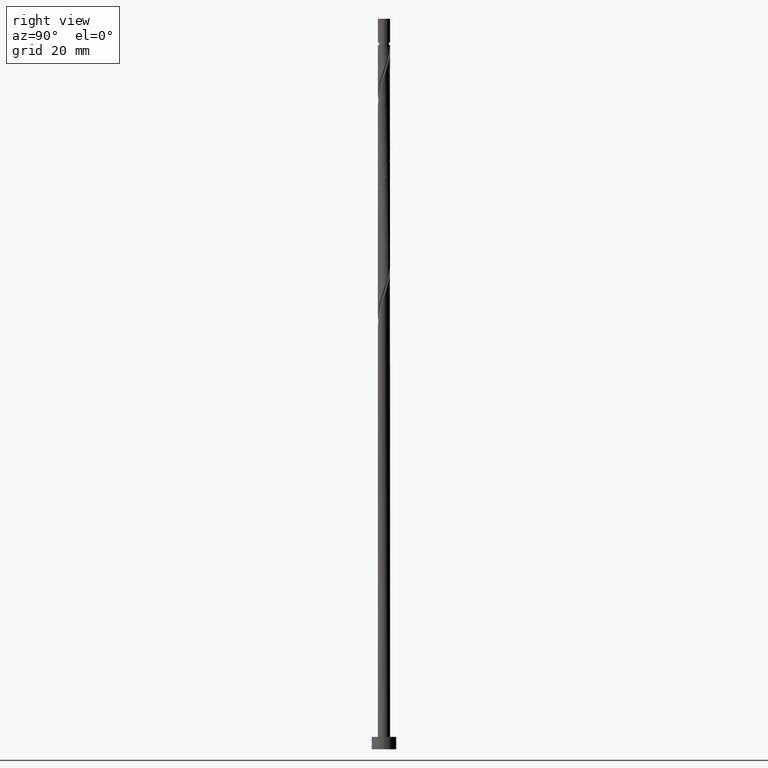
[diagram: clean part render]
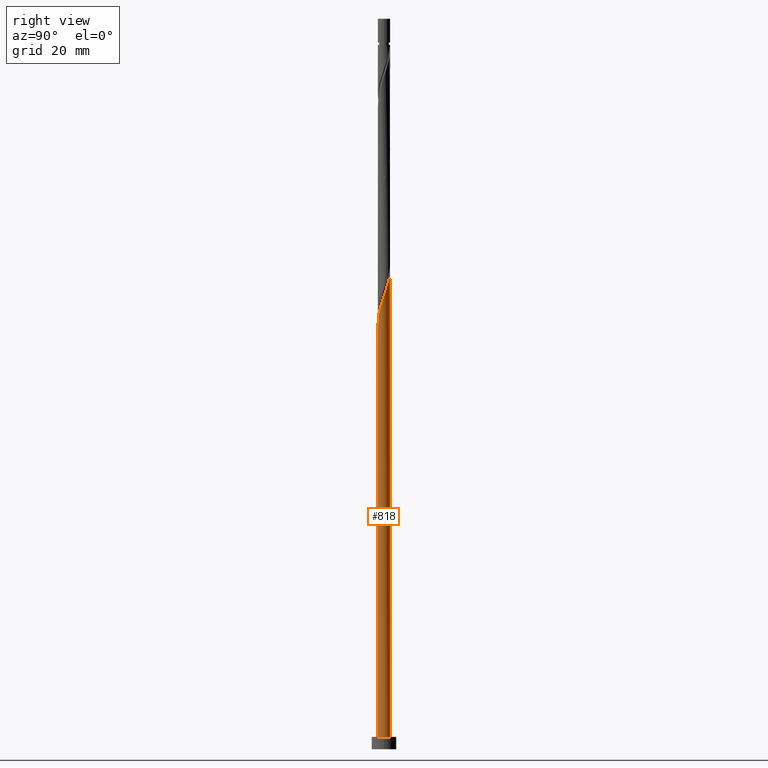
[diagram: same view with one face highlighted and labeled with its STEP entity id]
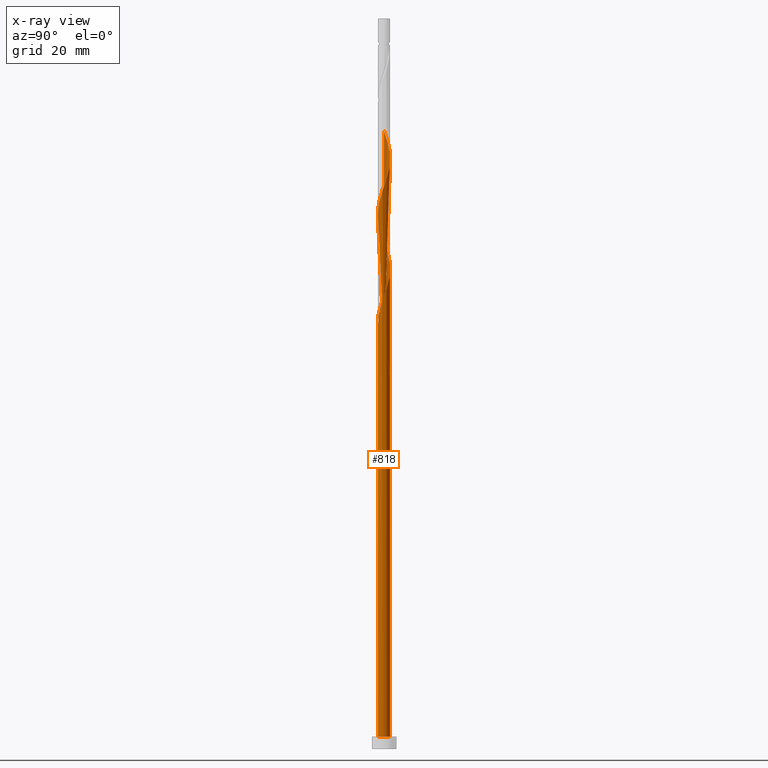
[diagram: x-ray of the same camera — body ghosted, the highlighted face saturated]
A machine part, right view. The second image highlights one B-rep face of the part: STEP entity #818.
The next image is the same camera in x-ray: the body ghosted, the highlighted face saturated — about 0% of this face is hidden behind the body in this view.
In plain terms, the highlighted cylindrical surface (bore or boss wall) has radius 1.5 mm, axis along (-0, -0, -1).
Its self-contained STEP definition (entity closure, byte-faithful):
#6 = CARTESIAN_POINT ( 'NONE',  ( -1.412398115979206503, 0.5492212733340110509, 121.5308264145813837 ) ) ;
#11 = CARTESIAN_POINT ( 'NONE',  ( -1.500000000000003109, -1.914473050047502807E-15, 96.43894769285623170 ) ) ;
#14 = CARTESIAN_POINT ( 'NONE',  ( -1.461158848907852859, 0.3391383467823808617, 122.1368870206419786 ) ) ;
#21 = CARTESIAN_POINT ( 'NONE',  ( -1.412557076706239645, -0.5046607821568174224, 124.5611294448844149 ) ) ;
#26 = CARTESIAN_POINT ( 'NONE',  ( -1.086320624467307816, -1.056607754070167271, 99.71264459639954225 ) ) ;
#29 = CARTESIAN_POINT ( 'NONE',  ( 1.509919581836499436, -0.1290554202307508114, 136.0762809600359446 ) ) ;
#68 = CARTESIAN_POINT ( 'NONE',  ( 0.7446362021362258332, 1.319859602977673685, 140.9247658085207604 ) ) ;
#89 = CARTESIAN_POINT ( 'NONE',  ( 0.5436309926831522921, 1.398021939668451230, 141.5308264145813268 ) ) ;
#98 =( BOUNDED_CURVE ( )  B_SPLINE_CURVE ( 2, ( #1174, #325, #1534, #331, #707, #450, #568, #926, #1401, #105, #935 ),
 .UNSPECIFIED., .F., .T. ) 
 B_SPLINE_CURVE_WITH_KNOTS ( ( 3, 2, 2, 2, 2, 3 ),
 ( 0.000000000000000000, 0.01136363636363635181, 0.02272727272727270362, 0.03409090909090906063, 0.04545454545454540723, 0.05452521624175146742 ),
 .UNSPECIFIED. ) 
 CURVE ( )  GEOMETRIC_REPRESENTATION_ITEM ( )  RATIONAL_B_SPLINE_CURVE ( ( 0.9090909090909382595, 0.8998376744372403868, 0.9090909090909382595, 0.8998376744372403868, 0.9090909090909382595, 0.8998376744372403868, 0.9090909090909382595, 0.8998376744372403868, 0.9090909090909382595, 0.9017048011080177616, 0.9061101570135787764 ) ) 
 REPRESENTATION_ITEM ( '' )  );
#105 = CARTESIAN_POINT ( 'NONE',  ( -1.500000000000003997, 0.1717933910776807405, 95.95298773988494645 ) ) ;
#110 = CARTESIAN_POINT ( 'NONE',  ( 0.7005518949784530491, -1.326358564808969298, 131.8338567176116953 ) ) ;
#117 = CARTESIAN_POINT ( 'NONE',  ( -0.3426257832300790840, -1.476184276359228109, 102.1368870206419501 ) ) ;
#121 = CIRCLE ( 'NONE', #1119, 1.500000000000000222 ) ;
#123 = DIRECTION ( 'NONE',  ( -0.000000000000000000, -0.000000000000000000, -1.000000000000000000 ) ) ;
#125 = ORIENTED_EDGE ( 'NONE', *, *, #849, .F. ) ;
#126 = CARTESIAN_POINT ( 'NONE',  ( -0.5436309926831528472, -1.398021939668451230, 101.5308264145813837 ) ) ;
#137 = AXIS2_PLACEMENT_3D ( 'NONE', #1131, #866, #1339 ) ;
#138 = CARTESIAN_POINT ( 'NONE',  ( 1.306425335299756130, -0.7370568792752210108, 107.5914324751874460 ) ) ;
#142 = CARTESIAN_POINT ( 'NONE',  ( -1.497517962423707383, -0.08625515763335846187, 96.68234156609651109 ) ) ;
#145 = CARTESIAN_POINT ( 'NONE',  ( 1.412398115979206725, -0.5492212733340107178, 134.8641597479146981 ) ) ;
#169 = CARTESIAN_POINT ( 'NONE',  ( 0.000000000000000000, 0.000000000000000000, 3.000000000000000000 ) ) ;
#192 = CARTESIAN_POINT ( 'NONE',  ( 0.9154784133017664915, 1.188233678523920478, 140.3187052024601655 ) ) ;
#216 = CARTESIAN_POINT ( 'NONE',  ( -1.086320624467305818, 1.056607754070165939, 94.86415974791471228 ) ) ;
#224 = CARTESIAN_POINT ( 'NONE',  ( 0.08714213895937637788, 1.512917278876086069, 91.22779611155107204 ) ) ;
#237 = CARTESIAN_POINT ( 'NONE',  ( -1.509919581836499436, 0.1290554202307509502, 122.7429476267025592 ) ) ;
#244 = CARTESIAN_POINT ( 'NONE',  ( 1.497517962423707605, 0.08625515763335830921, 110.0156748994298539 ) ) ;
#252 = CARTESIAN_POINT ( 'NONE',  ( 0.08714213895937622523, -1.512917278876088734, 130.0156748994297971 ) ) ;
#258 = ORIENTED_EDGE ( 'NONE', *, *, #1186, .F. ) ;
#260 = CARTESIAN_POINT ( 'NONE',  ( -0.2984962311319871997, 1.470000000000002416, 117.2884021721571486 ) ) ;
#267 = CARTESIAN_POINT ( 'NONE',  ( -0.7005518949784533822, 1.326358564808968410, 118.5005233842783383 ) ) ;
#306 = VERTEX_POINT ( 'NONE', #645 ) ;
#325 = CARTESIAN_POINT ( 'NONE',  ( -0.5098503233045985628, 1.427082721123916098, 91.22779611155105783 ) ) ;
#331 = CARTESIAN_POINT ( 'NONE',  ( -0.8912534666523078686, 1.225634408494020722, 92.43991732367224756 ) ) ;
#334 = CARTESIAN_POINT ( 'NONE',  ( -0.2984962311319870332, 1.470000000000002416, 90.62173550549044876 ) ) ;
#347 = CARTESIAN_POINT ( 'NONE',  ( -0.9154784133017667136, -1.188233678523920256, 126.9853718691268369 ) ) ;
#352 = CYLINDRICAL_SURFACE ( 'NONE', #1142, 1.500000000000000222 ) ;
#353 = EDGE_CURVE ( 'NONE', #649, #1531, #1482, .T. ) ;
#357 = CARTESIAN_POINT ( 'NONE',  ( -1.200452554620305978, 0.9248924852164307486, 120.3187052024601655 ) ) ;
#364 = CARTESIAN_POINT ( 'NONE',  ( -0.7446362021362261663, -1.319859602977673463, 127.5914324751874176 ) ) ;
#374 = CARTESIAN_POINT ( 'NONE',  ( 1.306425335299756130, -0.7370568792752210108, 134.2580991418541316 ) ) ;
#383 = CARTESIAN_POINT ( 'NONE',  ( 1.339997810401564404, 0.7077558288161668321, 138.5005233842783241 ) ) ;
#423 = CARTESIAN_POINT ( 'NONE',  ( -1.500000000000002442, 0.1717933910776870132, 149.2863210732182608 ) ) ;
#424 = EDGE_CURVE ( 'NONE', #1040, #838, #776, .T. ) ;
#436 = CARTESIAN_POINT ( 'NONE',  ( -1.412398115979206503, 0.5492212733340110509, 148.1974930812480125 ) ) ;
#450 = CARTESIAN_POINT ( 'NONE',  ( -1.200452554620305978, 0.9248924852164307486, 93.65203853579347992 ) ) ;
#462 = CARTESIAN_POINT ( 'NONE',  ( 1.485116343010915552, 0.3015657354974674020, 110.6217355054904488 ) ) ;
#472 = CARTESIAN_POINT ( 'NONE',  ( -0.7446362021362261663, -1.319859602977673463, 100.9247658085207462 ) ) ;
#473 = CARTESIAN_POINT ( 'NONE',  ( -0.7446362021362245009, 1.319859602977671686, 93.65203853579349413 ) ) ;
#482 = CARTESIAN_POINT ( 'NONE',  ( -1.497517962423707383, -0.08625515763335846187, 123.3490082327632109 ) ) ;
#491 = CARTESIAN_POINT ( 'NONE',  ( 0.5098503233045983407, -1.427082721123916320, 131.2277961115510436 ) ) ;
#496 = CARTESIAN_POINT ( 'NONE',  ( -1.485116343010915552, -0.3015657354974674575, 97.28840217215713437 ) ) ;
#499 = CARTESIAN_POINT ( 'NONE',  ( 1.497517962423707605, 0.08625515763335830921, 136.6823415660965111 ) ) ;
#516 = CIRCLE ( 'NONE', #1268, 1.500000000000000222 ) ;
#531 = CARTESIAN_POINT ( 'NONE',  ( 0.3426257832300792505, 1.476184276359228109, 142.1368870206419501 ) ) ;
#532 =( BOUNDED_CURVE ( )  B_SPLINE_CURVE ( 2, ( #11, #962, #142, #496, #611, #1210, #1095, #26, #830, #472, #126, #117, #867, #1340, #1306, #1066, #737, #957, #597, #1313, #138, #860, #606, #1099, #244, #462, #1083, #1430, #1335, #590, #706, #1541, #949, #716, #1187, #1091, #260, #1195, #267, #850, #1075, #357, #839, #6, #14, #237, #482, #966, #21, #1424, #1214, #1439, #347, #364, #1324, #1451, #1179, #252, #726, #491, #110, #1206, #582, #974, #374, #145, #614, #29, #499, #980, #1458, #383, #1025, #910, #192, #68, #89, #531, #675, #767, #1012, #918, #1372, #898, #540, #1363, #1507, #436, #1136, #423, #1262 ),
 .UNSPECIFIED., .F., .T. ) 
 B_SPLINE_CURVE_WITH_KNOTS ( ( 3, 2, 2, 2, 2, 2, 2, 2, 2, 2, 2, 2, 2, 2, 2, 2, 2, 2, 2, 2, 2, 2, 2, 2, 2, 2, 2, 2, 2, 2, 2, 2, 2, 2, 2, 2, 2, 2, 2, 2, 2, 2, 2, 2, 2, 3 ),
 ( 0.05452521624175146742, 0.05681818181818176772, 0.06818181818181823228, 0.07954545454545458583, 0.09090909090909093937, 0.1022727272727272929, 0.1136363636363636465, 0.1250000000000000000, 0.1363636363636363535, 0.1477272727272727071, 0.1590909090909090606, 0.1704545454545454142, 0.1818181818181817677, 0.1931818181818182323, 0.2045454545454545858, 0.2159090909090909394, 0.2272727272727272929, 0.2386363636363636465, 0.2500000000000000000, 0.2613636363636363535, 0.2727272727272727071, 0.2840909090909090606, 0.2954545454545454142, 0.3068181818181817677, 0.3181818181818182323, 0.3295454545454545858, 0.3409090909090909394, 0.3522727272727272929, 0.3636363636363636465, 0.3750000000000000000, 0.3863636363636363535, 0.3977272727272727071, 0.4090909090909090606, 0.4204545454545454142, 0.4318181818181817677, 0.4431818181818182323, 0.4545454545454545858, 0.4659090909090909394, 0.4772727272727272929, 0.4886363636363636465, 0.5000000000000000000, 0.5113636363636363535, 0.5227272727272727071, 0.5340909090909091717, 0.5454545454545454142, 0.5545252162417512176 ),
 .UNSPECIFIED. ) 
 CURVE ( )  GEOMETRIC_REPRESENTATION_ITEM ( )  RATIONAL_B_SPLINE_CURVE ( ( 0.9061101570135787764, 0.9072237824201608847, 0.9090909090909382595, 0.8998376744372403868, 0.9090909090909382595, 0.8998376744372403868, 0.9090909090909382595, 0.8998376744372403868, 0.9090909090909382595, 0.8998376744372403868, 0.9090909090909382595, 0.8998376744372403868, 0.9090909090909382595, 0.8998376744372403868, 0.9090909090909382595, 0.8998376744372403868, 0.9090909090909382595, 0.8998376744372403868, 0.9090909090909382595, 0.8998376744372403868, 0.9090909090909382595, 0.8998376744372403868, 0.9090909090909382595, 0.8998376744372403868, 0.9090909090909382595, 0.8998376744372403868, 0.9090909090909382595, 0.8998376744372403868, 0.9090909090909382595, 0.8998376744372403868, 0.9090909090909382595, 0.8998376744372403868, 0.9090909090909382595, 0.8998376744372403868, 0.9090909090909382595, 0.8998376744372403868, 0.9090909090909382595, 0.8998376744372403868, 0.9090909090909382595, 0.8998376744372403868, 0.9090909090909382595, 0.8998376744372403868, 0.9090909090909382595, 0.8998376744372403868, 0.9090909090909382595, 0.8998376744372403868, 0.9090909090909382595, 0.8998376744372403868, 0.9090909090909382595, 0.8998376744372403868, 0.9090909090909382595, 0.8998376744372403868, 0.9090909090909382595, 0.8998376744372403868, 0.9090909090909382595, 0.8998376744372403868, 0.9090909090909382595, 0.8998376744372403868, 0.9090909090909382595, 0.8998376744372403868, 0.9090909090909382595, 0.8998376744372403868, 0.9090909090909382595, 0.8998376744372403868, 0.9090909090909382595, 0.8998376744372403868, 0.9090909090909382595, 0.8998376744372403868, 0.9090909090909382595, 0.8998376744372403868, 0.9090909090909382595, 0.8998376744372403868, 0.9090909090909382595, 0.8998376744372403868, 0.9090909090909382595, 0.8998376744372403868, 0.9090909090909382595, 0.8998376744372403868, 0.9090909090909382595, 0.8998376744372403868, 0.9090909090909382595, 0.8998376744372403868, 0.9090909090909382595, 0.8998376744372403868, 0.9090909090909382595, 0.8998376744372403868, 0.9090909090909382595, 0.8998376744372403868, 0.9090909090909382595, 0.9017048011080179837, 0.9061101570135784433 ) ) 
 REPRESENTATION_ITEM ( '' )  );
#540 = CARTESIAN_POINT ( 'NONE',  ( -1.045853010636307090, 1.075263446855226013, 146.3793112630662563 ) ) ;
#568 = CARTESIAN_POINT ( 'NONE',  ( -1.306425335299756130, 0.7370568792752207887, 94.25809914185408900 ) ) ;
#582 = CARTESIAN_POINT ( 'NONE',  ( 1.045853010636307090, -1.075263446855226013, 133.0459779297328851 ) ) ;
#590 = CARTESIAN_POINT ( 'NONE',  ( 1.086320624467308260, 1.056607754070166605, 113.0459779297328851 ) ) ;
#597 = CARTESIAN_POINT ( 'NONE',  ( 1.045853010636307090, -1.075263446855226013, 106.3793112630662137 ) ) ;
#606 = CARTESIAN_POINT ( 'NONE',  ( 1.461158848907853081, -0.3391383467823806952, 108.8035536873086642 ) ) ;
#611 = CARTESIAN_POINT ( 'NONE',  ( -1.412557076706239645, -0.5046607821568174224, 97.89446277821774345 ) ) ;
#614 = CARTESIAN_POINT ( 'NONE',  ( 1.461158848907853081, -0.3391383467823806952, 135.4702203539753214 ) ) ;
#640 = LINE ( 'NONE', #764, #1219 ) ;
#645 = CARTESIAN_POINT ( 'NONE',  ( -1.500000000000002442, 1.720034380902052995E-16, 149.7722810261895461 ) ) ;
#649 = VERTEX_POINT ( 'NONE', #334 ) ;
#666 = ORIENTED_EDGE ( 'NONE', *, *, #1468, .T. ) ;
#675 = CARTESIAN_POINT ( 'NONE',  ( 0.1277418221353515959, 1.494550777617658976, 142.7429476267026018 ) ) ;
#696 = DIRECTION ( 'NONE',  ( -1.000000000000000000, 0.000000000000000000, 0.000000000000000000 ) ) ;
#700 = CARTESIAN_POINT ( 'NONE',  ( 1.500000000000000222, 0.000000000000000000, 3.000000000000000000 ) ) ;
#706 = CARTESIAN_POINT ( 'NONE',  ( 0.9154784133017664915, 1.188233678523920478, 113.6520385357934941 ) ) ;
#707 = CARTESIAN_POINT ( 'NONE',  ( -1.045853010636307090, 1.075263446855226013, 93.04597792973288506 ) ) ;
#716 = CARTESIAN_POINT ( 'NONE',  ( 0.3426257832300792505, 1.476184276359228109, 115.4702203539753214 ) ) ;
#717 = CARTESIAN_POINT ( 'NONE',  ( -1.500000000000000000, -1.809775305123043420E-15, 98.13785665145799442 ) ) ;
#726 = CARTESIAN_POINT ( 'NONE',  ( 0.2984962311319872552, -1.470000000000002416, 130.6217355054904772 ) ) ;
#737 = CARTESIAN_POINT ( 'NONE',  ( 0.7005518949784530491, -1.326358564808969298, 105.1671900509450097 ) ) ;
#764 = CARTESIAN_POINT ( 'NONE',  ( -1.500000000000000222, 0.000000000000000000, 177.0000000000000000 ) ) ;
#767 = CARTESIAN_POINT ( 'NONE',  ( -0.08714213895937603094, 1.512917278876088734, 143.3490082327631399 ) ) ;
#776 = LINE ( 'NONE', #1029, #1116 ) ;
#804 = DIRECTION ( 'NONE',  ( -0.000000000000000000, -0.000000000000000000, -1.000000000000000000 ) ) ;
#816 = CARTESIAN_POINT ( 'NONE',  ( -1.213159217434433446, 0.8821817914431657748, 95.47022035397530715 ) ) ;
#818 = ADVANCED_FACE ( 'NONE', ( #954 ), #352, .T. ) ;
#830 = CARTESIAN_POINT ( 'NONE',  ( -0.9154784133017667136, -1.188233678523920256, 100.3187052024601655 ) ) ;
#835 = CARTESIAN_POINT ( 'NONE',  ( -1.500000000000000000, -1.809775305123043420E-15, 98.13785665145800863 ) ) ;
#838 = VERTEX_POINT ( 'NONE', #1202 ) ;
#839 = CARTESIAN_POINT ( 'NONE',  ( -1.306425335299756130, 0.7370568792752207887, 120.9247658085207746 ) ) ;
#846 = VERTEX_POINT ( 'NONE', #835 ) ;
#849 = EDGE_CURVE ( 'NONE', #1040, #306, #532, .T. ) ;
#850 = CARTESIAN_POINT ( 'NONE',  ( -0.8912534666523078686, 1.225634408494020722, 119.1065839903389332 ) ) ;
#860 = CARTESIAN_POINT ( 'NONE',  ( 1.412398115979206725, -0.5492212733340107178, 108.1974930812480551 ) ) ;
#866 = DIRECTION ( 'NONE',  ( 0.000000000000000000, -0.000000000000000000, -1.000000000000000000 ) ) ;
#867 = CARTESIAN_POINT ( 'NONE',  ( -0.1277418221353514016, -1.494550777617658976, 102.7429476267025734 ) ) ;
#898 = CARTESIAN_POINT ( 'NONE',  ( -0.8912534666523078686, 1.225634408494020722, 145.7732506570056046 ) ) ;
#910 = CARTESIAN_POINT ( 'NONE',  ( 1.086320624467308260, 1.056607754070166605, 139.7126445963995991 ) ) ;
#916 = ORIENTED_EDGE ( 'NONE', *, *, #1533, .F. ) ;
#918 = CARTESIAN_POINT ( 'NONE',  ( -0.5098503233045985628, 1.427082721123916098, 144.5611294448843580 ) ) ;
#926 = CARTESIAN_POINT ( 'NONE',  ( -1.412398115979206503, 0.5492212733340110509, 94.86415974791469807 ) ) ;
#935 = CARTESIAN_POINT ( 'NONE',  ( -1.500000000000003109, -1.914473050047502807E-15, 96.43894769285623170 ) ) ;
#949 = CARTESIAN_POINT ( 'NONE',  ( 0.5436309926831522921, 1.398021939668451230, 114.8641597479147123 ) ) ;
#950 = CARTESIAN_POINT ( 'NONE',  ( -0.5436309926831510708, 1.398021939668449010, 93.04597792973287085 ) ) ;
#954 = FACE_OUTER_BOUND ( 'NONE', #1147, .T. ) ;
#957 = CARTESIAN_POINT ( 'NONE',  ( 0.8912534666523079796, -1.225634408494020722, 105.7732506570056188 ) ) ;
#958 = CARTESIAN_POINT ( 'NONE',  ( -0.3426257832300782513, 1.476184276359225889, 92.43991732367226177 ) ) ;
#962 = CARTESIAN_POINT ( 'NONE',  ( -1.500000000000001998, -0.04316328978573768377, 96.56104569757444267 ) ) ;
#964 = ORIENTED_EDGE ( 'NONE', *, *, #353, .T. ) ;
#966 = CARTESIAN_POINT ( 'NONE',  ( -1.485116343010915552, -0.3015657354974674575, 123.9550688388237774 ) ) ;
#974 = CARTESIAN_POINT ( 'NONE',  ( 1.200452554620305978, -0.9248924852164307486, 133.6520385357934799 ) ) ;
#980 = CARTESIAN_POINT ( 'NONE',  ( 1.485116343010915552, 0.3015657354974674020, 137.2884021721571344 ) ) ;
#1012 = CARTESIAN_POINT ( 'NONE',  ( -0.2984962311319871997, 1.470000000000002416, 143.9550688388238200 ) ) ;
#1023 = ORIENTED_EDGE ( 'NONE', *, *, #424, .F. ) ;
#1025 = CARTESIAN_POINT ( 'NONE',  ( 1.213159217434435888, 0.8821817914431669960, 139.1065839903389474 ) ) ;
#1029 = CARTESIAN_POINT ( 'NONE',  ( -1.500000000000000222, 0.000000000000000000, 177.0000000000000000 ) ) ;
#1040 = VERTEX_POINT ( 'NONE', #1129 ) ;
#1042 = CARTESIAN_POINT ( 'NONE',  ( -1.500000000000000000, 0.04316328978573338165, 98.01575864673979765 ) ) ;
#1058 = CARTESIAN_POINT ( 'NONE',  ( -0.9154784133017649372, 1.188233678523918480, 94.25809914185406058 ) ) ;
#1062 = ORIENTED_EDGE ( 'NONE', *, *, #1209, .F. ) ;
#1066 = CARTESIAN_POINT ( 'NONE',  ( 0.5098503233045983407, -1.427082721123916320, 104.5611294448843864 ) ) ;
#1067 = CARTESIAN_POINT ( 'NONE',  ( -1.497517962423704718, 0.08625515763335878106, 97.89446277821772924 ) ) ;
#1075 = CARTESIAN_POINT ( 'NONE',  ( -1.045853010636307090, 1.075263446855226013, 119.7126445963995565 ) ) ;
#1083 = CARTESIAN_POINT ( 'NONE',  ( 1.412557076706239645, 0.5046607821568172003, 111.2277961115510720 ) ) ;
#1091 = CARTESIAN_POINT ( 'NONE',  ( -0.08714213895937603094, 1.512917278876088734, 116.6823415660965111 ) ) ;
#1095 = CARTESIAN_POINT ( 'NONE',  ( -1.213159217434435888, -0.8821817914431672181, 99.10658399033896160 ) ) ;
#1099 = CARTESIAN_POINT ( 'NONE',  ( 1.509919581836499436, -0.1290554202307508114, 109.4096142933692590 ) ) ;
#1116 = VECTOR ( 'NONE', #804, 1000.000000000000000 ) ;
#1119 = AXIS2_PLACEMENT_3D ( 'NONE', #169, #1361, #1121 ) ;
#1121 = DIRECTION ( 'NONE',  ( 1.000000000000000000, 0.000000000000000000, 0.000000000000000000 ) ) ;
#1127 = CARTESIAN_POINT ( 'NONE',  ( 0.2984962311319874773, 1.469999999999999751, 90.62173550549044876 ) ) ;
#1129 = CARTESIAN_POINT ( 'NONE',  ( -1.500000000000002887, -1.914473050047502807E-15, 96.43894769285623170 ) ) ;
#1131 = CARTESIAN_POINT ( 'NONE',  ( 0.000000000000000000, 0.000000000000000000, 90.62173550549046297 ) ) ;
#1133 = DIRECTION ( 'NONE',  ( 0.000000000000000000, 0.000000000000000000, 1.000000000000000000 ) ) ;
#1136 = CARTESIAN_POINT ( 'NONE',  ( -1.461158848907852859, 0.3391383467823808617, 148.8035536873086357 ) ) ;
#1142 = AXIS2_PLACEMENT_3D ( 'NONE', #1411, #123, #696 ) ;
#1147 = EDGE_LOOP ( 'NONE', ( #916, #125, #1421, #1304, #666, #1023, #258, #964, #1062 ) ) ;
#1174 = CARTESIAN_POINT ( 'NONE',  ( -0.2984962311319870887, 1.470000000000002416, 90.62173550549044876 ) ) ;
#1179 = CARTESIAN_POINT ( 'NONE',  ( -0.1277418221353514016, -1.494550777617658976, 129.4096142933692590 ) ) ;
#1180 = CARTESIAN_POINT ( 'NONE',  ( 0.2984962311319874773, 1.469999999999999751, 90.62173550549044876 ) ) ;
#1186 = EDGE_CURVE ( 'NONE', #649, #1040, #98, .T. ) ;
#1187 = CARTESIAN_POINT ( 'NONE',  ( 0.1277418221353515959, 1.494550777617658976, 116.0762809600359020 ) ) ;
#1188 = CARTESIAN_POINT ( 'NONE',  ( -0.1277418221353509020, 1.494550777617656312, 91.83385671761165270 ) ) ;
#1195 = CARTESIAN_POINT ( 'NONE',  ( -0.5098503233045985628, 1.427082721123916098, 117.8944627782177008 ) ) ;
#1196 = CARTESIAN_POINT ( 'NONE',  ( -1.485116343010913109, 0.3015657354974674575, 97.28840217215712016 ) ) ;
#1202 = CARTESIAN_POINT ( 'NONE',  ( -1.500000000000000222, 0.000000000000000000, 3.000000000000000000 ) ) ;
#1206 = CARTESIAN_POINT ( 'NONE',  ( 0.8912534666523079796, -1.225634408494020722, 132.4399173236722618 ) ) ;
#1209 = EDGE_CURVE ( 'NONE', #846, #1531, #1225, .T. ) ;
#1210 = CARTESIAN_POINT ( 'NONE',  ( -1.339997810401563960, -0.7077558288161672762, 98.50052338427830989 ) ) ;
#1214 = CARTESIAN_POINT ( 'NONE',  ( -1.213159217434435888, -0.8821817914431672181, 125.7732506570056188 ) ) ;
#1219 = VECTOR ( 'NONE', #1244, 1000.000000000000000 ) ;
#1225 =( BOUNDED_CURVE ( )  B_SPLINE_CURVE ( 2, ( #717, #1042, #1067, #1196, #1293, #1286, #816, #216, #1058, #473, #950, #958, #1188, #224, #1180 ),
 .UNSPECIFIED., .F., .T. ) 
 B_SPLINE_CURVE_WITH_KNOTS ( ( 3, 2, 2, 2, 2, 2, 2, 3 ),
 ( 0.9295252162417512176, 0.9318181818181817677, 0.9431818181818182323, 0.9545454545454545858, 0.9659090909090909394, 0.9772727272727272929, 0.9886363636363636465, 1.000000000000000000 ),
 .UNSPECIFIED. ) 
 CURVE ( )  GEOMETRIC_REPRESENTATION_ITEM ( )  RATIONAL_B_SPLINE_CURVE ( ( 0.9061101570135718930, 0.9072237824201540013, 0.9090909090909315982, 0.8998376744372337255, 0.9090909090909315982, 0.8998376744372337255, 0.9090909090909315982, 0.8998376744372337255, 0.9090909090909315982, 0.8998376744372337255, 0.9090909090909315982, 0.8998376744372337255, 0.9090909090909315982, 0.8998376744372337255, 0.9090909090909315982 ) ) 
 REPRESENTATION_ITEM ( '' )  );
#1244 = DIRECTION ( 'NONE',  ( -0.000000000000000000, -0.000000000000000000, -1.000000000000000000 ) ) ;
#1262 = CARTESIAN_POINT ( 'NONE',  ( -1.500000000000002442, 1.720034380902052995E-16, 149.7722810261895461 ) ) ;
#1268 = AXIS2_PLACEMENT_3D ( 'NONE', #1370, #1133, #1479 ) ;
#1286 = CARTESIAN_POINT ( 'NONE',  ( -1.339997810401561518, 0.7077558288161661659, 96.07628096003590201 ) ) ;
#1293 = CARTESIAN_POINT ( 'NONE',  ( -1.412557076706236980, 0.5046607821568167562, 96.68234156609651109 ) ) ;
#1304 = ORIENTED_EDGE ( 'NONE', *, *, #1510, .T. ) ;
#1306 = CARTESIAN_POINT ( 'NONE',  ( 0.2984962311319872552, -1.470000000000002416, 103.9550688388238200 ) ) ;
#1313 = CARTESIAN_POINT ( 'NONE',  ( 1.200452554620305978, -0.9248924852164307486, 106.9853718691268369 ) ) ;
#1324 = CARTESIAN_POINT ( 'NONE',  ( -0.5436309926831528472, -1.398021939668451230, 128.1974930812480693 ) ) ;
#1335 = CARTESIAN_POINT ( 'NONE',  ( 1.213159217434435888, 0.8821817914431669960, 112.4399173236722902 ) ) ;
#1339 = DIRECTION ( 'NONE',  ( -1.000000000000000000, 0.000000000000000000, 0.000000000000000000 ) ) ;
#1340 = CARTESIAN_POINT ( 'NONE',  ( 0.08714213895937622523, -1.512917278876088734, 103.3490082327631967 ) ) ;
#1361 = DIRECTION ( 'NONE',  ( 0.000000000000000000, 0.000000000000000000, 1.000000000000000000 ) ) ;
#1363 = CARTESIAN_POINT ( 'NONE',  ( -1.200452554620305978, 0.9248924852164307486, 146.9853718691267659 ) ) ;
#1369 = VERTEX_POINT ( 'NONE', #700 ) ;
#1370 = CARTESIAN_POINT ( 'NONE',  ( 0.000000000000000000, 0.000000000000000000, 3.000000000000000000 ) ) ;
#1372 = CARTESIAN_POINT ( 'NONE',  ( -0.7005518949784533822, 1.326358564808968410, 145.1671900509450097 ) ) ;
#1401 = CARTESIAN_POINT ( 'NONE',  ( -1.461158848907852859, 0.3391383467823808617, 95.47022035397532136 ) ) ;
#1411 = CARTESIAN_POINT ( 'NONE',  ( 0.000000000000000000, 0.000000000000000000, 177.0000000000000000 ) ) ;
#1421 = ORIENTED_EDGE ( 'NONE', *, *, #424, .T. ) ;
#1424 = CARTESIAN_POINT ( 'NONE',  ( -1.339997810401563960, -0.7077558288161672762, 125.1671900509450097 ) ) ;
#1430 = CARTESIAN_POINT ( 'NONE',  ( 1.339997810401564404, 0.7077558288161668321, 111.8338567176116669 ) ) ;
#1439 = CARTESIAN_POINT ( 'NONE',  ( -1.086320624467307816, -1.056607754070167271, 126.3793112630661994 ) ) ;
#1451 = CARTESIAN_POINT ( 'NONE',  ( -0.3426257832300790840, -1.476184276359228109, 128.8035536873086357 ) ) ;
#1458 = CARTESIAN_POINT ( 'NONE',  ( 1.412557076706239645, 0.5046607821568172003, 137.8944627782177292 ) ) ;
#1468 = EDGE_CURVE ( 'NONE', #1369, #838, #516, .T. ) ;
#1479 = DIRECTION ( 'NONE',  ( 1.000000000000000000, 0.000000000000000000, 0.000000000000000000 ) ) ;
#1482 = CIRCLE ( 'NONE', #137, 1.500000000000000222 ) ;
#1507 = CARTESIAN_POINT ( 'NONE',  ( -1.306425335299756130, 0.7370568792752207887, 147.5914324751874460 ) ) ;
#1510 = EDGE_CURVE ( 'NONE', #838, #1369, #121, .T. ) ;
#1531 = VERTEX_POINT ( 'NONE', #1127 ) ;
#1533 = EDGE_CURVE ( 'NONE', #306, #846, #640, .T. ) ;
#1534 = CARTESIAN_POINT ( 'NONE',  ( -0.7005518949784533822, 1.326358564808968410, 91.83385671761170954 ) ) ;
#1541 = CARTESIAN_POINT ( 'NONE',  ( 0.7446362021362258332, 1.319859602977673685, 114.2580991418541174 ) ) ;